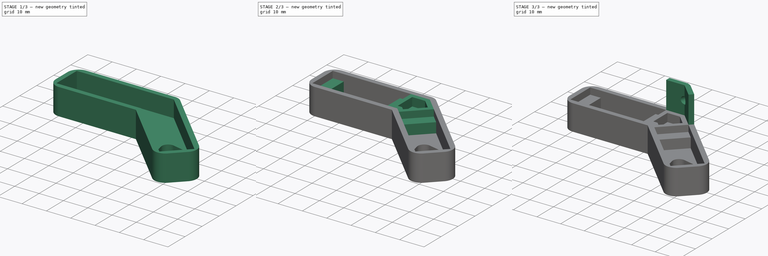
[diagram: build sequence overview — one tinted view per stage of 3, left to right]
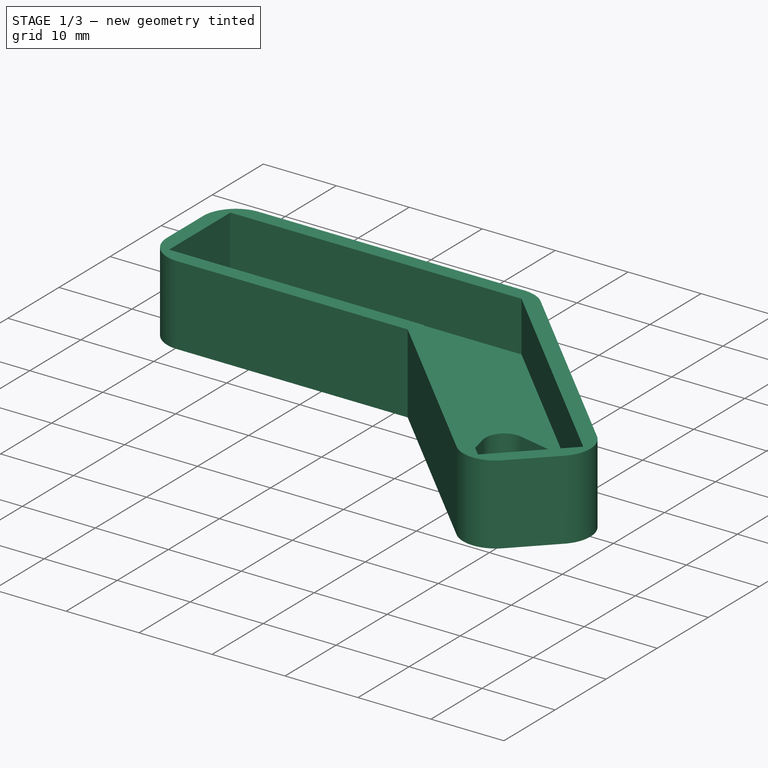
[diagram: stage 1 of 3 — iso view after this stage's code; geometry added in this stage tinted green]
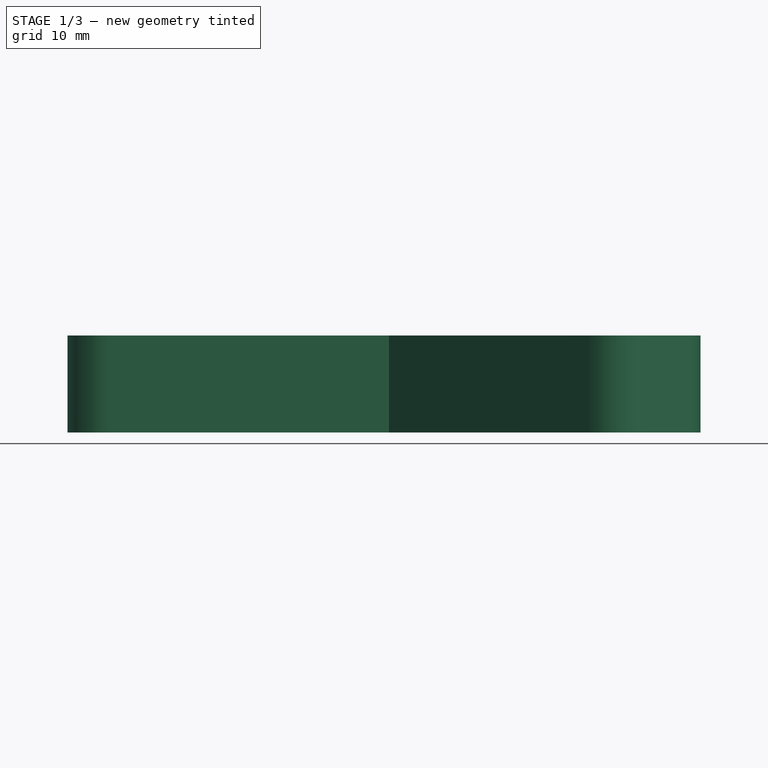
[diagram: stage 1 of 3 — front view after this stage's code; geometry added in this stage tinted green]
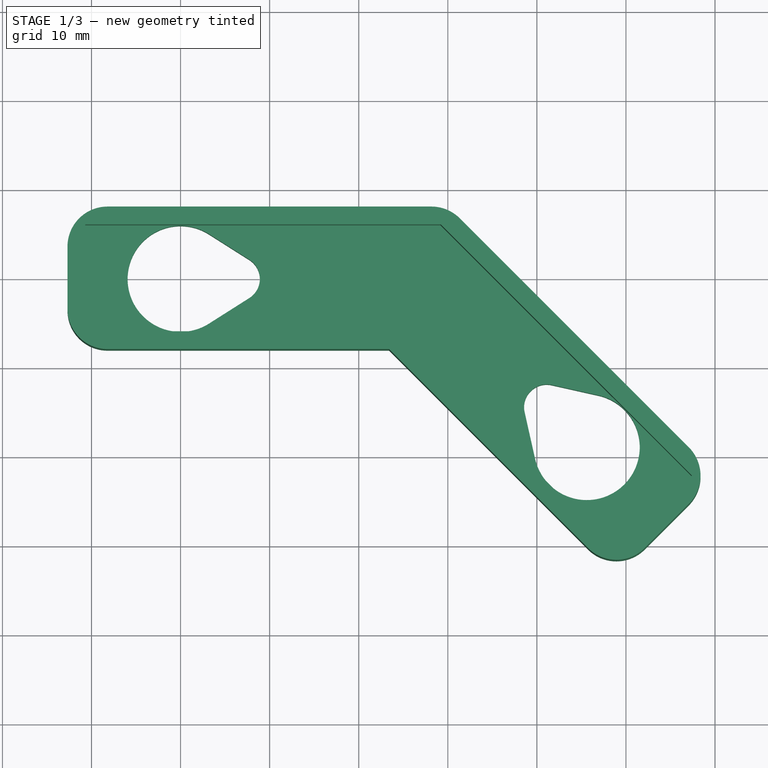
[diagram: stage 1 of 3 — top view after this stage's code; geometry added in this stage tinted green]
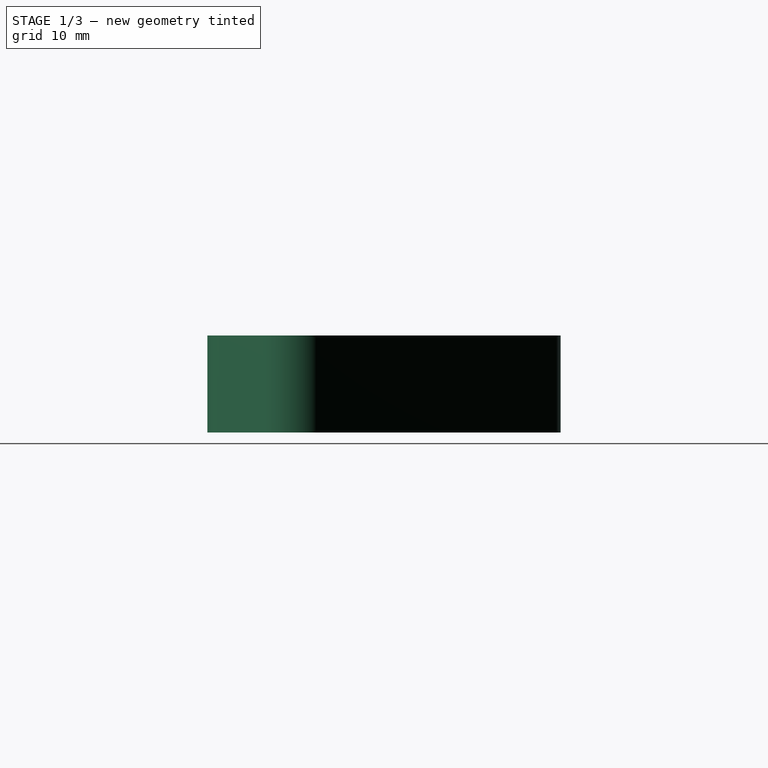
[diagram: stage 1 of 3 — right view after this stage's code; geometry added in this stage tinted green]
FCSTD DOCUMENT  (FreeCAD 0.19R)
Label: tibia_top
License: All rights reserved
LicenseURL: http://en.wikipedia.org/wiki/All_rights_reserved
objects: Sketcher::SketchObject×8, PartDesign::Pad×4, PartDesign::Pocket×3, PartDesign::Plane×1, PartDesign::Body×1
note: 24 computed .brp shape members not serialized (recipe doc carries the construction recipe); baked Part::Feature solids carry a one-line shape summary decoded from their .brp

FEATURE [Sketcher::SketchObject] Sketch
  MapMode = 5
  Support = -> [XY_Plane]
  sketch-geometry (46):
    g0: LineSegment [constr] StartX=-10.6 StartY=5.9 StartZ=0 EndX=21.3 EndY=5.9 EndZ=0
    g1: LineSegment [constr] StartX=21.3 StartY=5.9 StartZ=0 EndX=21.3 EndY=-5.9 EndZ=0
    g2: LineSegment [constr] StartX=21.3 StartY=-5.9 StartZ=0 EndX=-10.6 EndY=-5.9 EndZ=0
    g3: LineSegment [constr] StartX=-10.6 StartY=-5.9 StartZ=0 EndX=-10.6 EndY=5.9 EndZ=0
    g4: Circle [constr] CenterX=-8.3 CenterY=0 CenterZ=0 NormalX=0 NormalY=0 NormalZ=1 AngleXU=0 Radius=1
    g5: Circle [constr] CenterX=19 CenterY=0 CenterZ=0 NormalX=0 NormalY=0 NormalZ=1 AngleXU=0 Radius=1
    g6: LineSegment [constr] StartX=-8.3 StartY=0 StartZ=0 EndX=-10.6 EndY=0 EndZ=0
    g7: LineSegment [constr] StartX=19 StartY=0 StartZ=0 EndX=21.3 EndY=0 EndZ=0
    g8: LineSegment [constr] StartX=-5.9 StartY=5.9 StartZ=0 EndX=-5.9 EndY=-5.9 EndZ=0
    g9: ArcOfCircle [constr] CenterX=0 CenterY=0 CenterZ=0 NormalX=0 NormalY=0 NormalZ=1 AngleXU=0 Radius=5.9 StartAngle=0.437558 EndAngle=5.84563
    g10: ArcOfCircle [constr] CenterX=6.3 CenterY=0 CenterZ=0 NormalX=0 NormalY=0 NormalZ=1 AngleXU=0 Radius=2.5 StartAngle=4.71239 EndAngle=7.85398
    g11: LineSegment [constr] StartX=5.34416 StartY=2.5 StartZ=0 EndX=6.3 EndY=2.5 EndZ=0
    g12: LineSegment [constr] StartX=5.34416 StartY=-2.5 StartZ=0 EndX=6.3 EndY=-2.5 EndZ=0
    g13: LineSegment StartX=-12.7 StartY=3.5 StartZ=0 EndX=-12.7 EndY=-3.5 EndZ=0
    g14: LineSegment StartX=-8.2 StartY=-8 StartZ=0 EndX=23.4 EndY=-8 EndZ=0
    g15: LineSegment StartX=-8.2 StartY=8 StartZ=0 EndX=28.1635 EndY=8 EndZ=0
    g16: LineSegment StartX=23.4 StartY=-8 StartZ=0 EndX=45.7446 EndY=-30.3446 EndZ=0
    g17: LineSegment StartX=31.3454 StartY=6.68198 StartZ=0 EndX=57.0583 EndY=-19.0309 EndZ=0
    g18: LineSegment [constr] StartX=23.4 StartY=-8 StartZ=0 EndX=23.4 EndY=8 EndZ=0
    g19: LineSegment [constr] StartX=23.4 StartY=-8 StartZ=0 EndX=34.7137 EndY=3.31371 EndZ=0
    g20: LineSegment StartX=52.1085 StartY=-30.3446 StartZ=0 EndX=57.0583 EndY=-25.3948 EndZ=0
    g21: ArcOfCircle CenterX=-8.2 CenterY=3.5 CenterZ=0 NormalX=0 NormalY=0 NormalZ=1 AngleXU=0 Radius=4.5 StartAngle=1.5708 EndAngle=3.14159
    g22: ArcOfCircle CenterX=-8.2 CenterY=-3.5 CenterZ=0 NormalX=0 NormalY=0 NormalZ=1 AngleXU=0 Radius=4.5 StartAngle=3.14159 EndAngle=4.71239
    g23: ArcOfCircle CenterX=28.1635 CenterY=3.5 CenterZ=0 NormalX=0 NormalY=0 NormalZ=1 AngleXU=0 Radius=4.5 StartAngle=0.785398 EndAngle=1.5708
    g24: ArcOfCircle CenterX=48.9266 CenterY=-27.1626 CenterZ=0 NormalX=0 NormalY=0 NormalZ=1 AngleXU=0 Radius=4.5 StartAngle=3.92699 EndAngle=5.49779
    g25: ArcOfCircle CenterX=53.8763 CenterY=-22.2128 CenterZ=0 NormalX=0 NormalY=0 NormalZ=1 AngleXU=0 Radius=4.5 StartAngle=5.49779 EndAngle=7.06858
    g26: LineSegment [constr] StartX=-10.6 StartY=5.9 StartZ=0 EndX=-11.382 EndY=6.68198 EndZ=0
    g27: LineSegment [constr] StartX=-3.45211 StartY=-8 StartZ=0 EndX=-3.45211 EndY=-5.9 EndZ=0
    g28: LineSegment [constr] StartX=-3.60271 StartY=8 StartZ=0 EndX=-3.60271 EndY=5.9 EndZ=0
    g29: LineSegment [constr] StartX=21.3 StartY=-5.9 StartZ=0 EndX=23.4 EndY=-5.9 EndZ=0
    g30: LineSegment [constr] StartX=-10.6 StartY=-0.706956 StartZ=0 EndX=-12.7 EndY=-0.706956 EndZ=0
    g31: ArcOfCircle CenterX=0 CenterY=0 CenterZ=0 NormalX=0 NormalY=0 NormalZ=1 AngleXU=0 Radius=5.95 StartAngle=1.00578 EndAngle=5.27741
    g32: ArcOfCircle CenterX=6.35 CenterY=-9e-16 CenterZ=0 NormalX=0 NormalY=0 NormalZ=1 AngleXU=0 Radius=2.55 StartAngle=5.27741 EndAngle=7.28896
    g33: LineSegment StartX=3.18583 StartY=5.02524 StartZ=0 EndX=7.71535 EndY=2.15367 EndZ=0
    g34: LineSegment StartX=3.18583 StartY=-5.02524 StartZ=0 EndX=7.71535 EndY=-2.15367 EndZ=0
    g35: LineSegment [constr] StartX=26.3698 StartY=-8 StartZ=0 EndX=34.7137 EndY=0.34386 EndZ=0
    g36: LineSegment [constr] StartX=34.7137 StartY=0.34386 StartZ=0 EndX=57.2704 EndY=-22.2128 EndZ=0
    g37: LineSegment [constr] StartX=57.2704 StartY=-22.2128 StartZ=0 EndX=48.9266 EndY=-30.5567 EndZ=0
    g38: LineSegment [constr] StartX=48.9266 StartY=-30.5567 StartZ=0 EndX=26.3698 EndY=-8 EndZ=0
    g39: LineSegment [constr] StartX=38.0662 StartY=-22.6662 StartZ=0 EndX=39.5511 EndY=-21.1812 EndZ=0
    g40: LineSegment [constr] StartX=56.147 StartY=-26.3061 StartZ=0 EndX=54.6621 EndY=-24.8212 EndZ=0
    g41: ArcOfCircle CenterX=45.6032 CenterY=-18.8894 CenterZ=0 NormalX=0 NormalY=0 NormalZ=1 AngleXU=0 Radius=5.95 StartAngle=3.36197 EndAngle=7.6336
    g42: ArcOfCircle CenterX=41.113 CenterY=-14.3993 CenterZ=0 NormalX=0 NormalY=0 NormalZ=1 AngleXU=0 Radius=2.55 StartAngle=1.35042 EndAngle=3.36197
    g43: LineSegment StartX=38.6247 StartY=-14.9567 StartZ=0 EndX=39.7971 EndY=-20.1901 EndZ=0
    g44: LineSegment StartX=41.6705 StartY=-11.911 StartZ=0 EndX=46.9038 EndY=-13.0833 EndZ=0
    g45: LineSegment [constr] StartX=41.6705 StartY=-11.911 StartZ=0 EndX=38.6247 EndY=-14.9567 EndZ=0
  constraints (133):
    c: Coincident(g0,g1)
    c: Coincident(g1,g2)
    c: Coincident(g2,g3)
    c: Coincident(g3,g0)
    c: Horizontal(g0)
    c: Horizontal(g2)
    c: Vertical(g1)
    c: Vertical(g3)
    c: DistanceY(g1,g1) = 11.8
    c: DistanceX(g0,g0) = 31.9
    c: Equal(g4,g5)
    c: Radius(g4) = 1
    c: Horizontal(g4,g5)
    c: Distance(g4,g0) = 5.9
    c: Coincident(g6,g4)
    c: PointOnObject(g6,g3)
    c: Horizontal(g6)
    c: Coincident(g7,g5)
    c: PointOnObject(g7,g1)
    c: Horizontal(g7)
    c: Equal(g7,g6)
    c: DistanceX(g7,g7) = 2.3
    c: PointOnObject(g8,g0)
    c: PointOnObject(g8,g2)
    c: Vertical(g8)
    c: Distance(g8,g3) = 4.7
    c: Radius(g9) = 5.9
    c: Vertical(g9,g9)
    c: Horizontal(g9,g5)
    c: Angle(g10) = 3.14159
    c: Vertical(g10,g10)
    c: Horizontal(g10,g5)
    c: Horizontal(g9,g10)
    c: Distance(g10,g1) = 15
    c: Coincident(g11,g9)
    c: Coincident(g11,g10)
    c: Coincident(g12,g9)
    c: Coincident(g12,g10)
    c: Tangent(g9,g8)
    c: Radius(g10) = 2.5
    c: Coincident(g9,g-1)
    c: Vertical(g13)
    c: Horizontal(g14)
    c: Horizontal(g15)
    c: Coincident(g16,g14)
    c: Angle(g14,g16) = 2.35619
    c: Coincident(g18,g14)
    c: PointOnObject(g18,g15)
    c: Vertical(g18)
    c: Parallel(g17,g16)
    c: Coincident(g19,g14)
    c: PointOnObject(g19,g17)
    c: Perpendicular(g16,g19)
    c: Equal(g19,g18)
    c: Perpendicular(g20,g16)
    c: Equal(g14,g16)
    c: Tangent(g13,g21) = -1.5708
    c: Tangent(g15,g21) = 1.5708
    c: Tangent(g13,g22) = -1.5708
    c: Tangent(g14,g22) = -1.5708
    c: Tangent(g15,g23) = 1.5708
    c: Tangent(g17,g23) = 1.5708
    c: Tangent(g16,g24) = -1.5708
    c: Tangent(g20,g24) = -1.5708
    c: Tangent(g17,g25) = 1.5708
    c: Tangent(g20,g25) = -1.5708
    c: Equal(g22,g21)
    c: Equal(g21,g24)
    c: Equal(g24,g25)
    c: Radius(g25) = 4.5
    c: Equal(g23,g25)
    c: Coincident(g26,g0)
    c: PointOnObject(g26,g21)
    c: Angle(g0,g26) = 2.35619
    c: PointOnObject(g27,g14)
    c: PointOnObject(g27,g2)
    c: Vertical(g27)
    c: PointOnObject(g28,g15)
    c: Vertical(g28)
    c: Coincident(g29,g1)
    c: PointOnObject(g29,g18)
    c: Horizontal(g29)
    c: PointOnObject(g30,g3)
    c: PointOnObject(g30,g13)
    c: Horizontal(g30)
    c: Equal(g27,g30)
    c: Equal(g30,g28)
    c: Equal(g28,g29)
    c: PointOnObject(g28,g0)
    c: DistanceY(g28,g28) = 2.1
    c: Tangent(g31,g33) = 1.5708
    c: Tangent(g31,g34) = -1.5708
    c: Tangent(g34,g32) = -1.5708
    c: Tangent(g32,g33) = 1.5708
    c: Vertical(g31,g31)
    c: Coincident(g31,g-1)
    c: Radius(g31) = 5.95
    c: Radius(g32) = 2.55
    c: Distance(g10,g32) = 0.05
    c: Coincident(g35,g36)
    c: Coincident(g36,g37)
    c: Coincident(g37,g38)
    c: Coincident(g38,g35)
    c: Parallel(g38,g16)
    c: Parallel(g16,g36)
    c: Parallel(g35,g37)
    c: Parallel(g37,g20)
    c: Equal(g36,g0)
    c: Equal(g35,g3)
    c: PointOnObject(g39,g38)
    c: PointOnObject(g39,g16)
    c: PointOnObject(g40,g37)
    c: PointOnObject(g40,g20)
    c: Parallel(g39,g20)
    c: Parallel(g40,g17)
    c: Equal(g39,g40)
    c: Equal(g40,g27)
    c: Coincident(g42,g43)
    c: Coincident(g42,g44)
    c: Coincident(g41,g44)
    c: Coincident(g41,g43)
    c: Tangent(g43,g42)
    c: Tangent(g44,g42)
    c: Tangent(g43,g41)
    c: Equal(g41,g31)
    c: Equal(g42,g32)
    c: Equal(g43,g34)
    c: Equal(g44,g33)
    c: Distance(g41,g37) = 10.6
    c: Coincident(g45,g42)
    c: Coincident(g45,g42)
    c: Parallel(g45,g20)
    c: Distance(g41,g16) = 8
FEATURE [PartDesign::Pad] Pad
  Length = 10.9
  Length2 = 100
  Profile = -> Sketch
  Type = 0
FEATURE [Sketcher::SketchObject] Sketch001
  ExternalGeometry = -> [Pad]
  MapMode = 5
  Placement = pos=(0,0,10.9) rot=(0,0,1;0rad)
  Support = -> [Pad]
  sketch-geometry (10):
    g0: LineSegment StartX=-10.7 StartY=6 StartZ=0 EndX=29.199 EndY=6 EndZ=0
    g1: LineSegment StartX=29.199 StartY=6 StartZ=0 EndX=57.4118 EndY=-22.2128 EndZ=0
    g2: LineSegment StartX=57.4118 StartY=-22.2128 StartZ=0 EndX=48.9266 EndY=-30.6981 EndZ=0
    g3: LineSegment StartX=48.9266 StartY=-30.6981 StartZ=0 EndX=24.2284 EndY=-6 EndZ=0
    g4: LineSegment StartX=24.2284 StartY=-6 StartZ=0 EndX=-10.7 EndY=-6 EndZ=0
    g5: LineSegment StartX=-10.7 StartY=-6 StartZ=0 EndX=-10.7 EndY=6 EndZ=0
    g6: LineSegment [constr] StartX=6.2279 StartY=-8 StartZ=0 EndX=6.2279 EndY=-6 EndZ=0
    g7: LineSegment [constr] StartX=5.73363 StartY=8 StartZ=0 EndX=5.73363 EndY=6 EndZ=0
    g8: LineSegment [constr] StartX=-12.7 StartY=0.688525 StartZ=0 EndX=-10.7 EndY=0.688525 EndZ=0
    g9: LineSegment [constr] StartX=55.0164 StartY=-27.4368 StartZ=0 EndX=53.6021 EndY=-26.0225 EndZ=0
  constraints (30):
    c: Horizontal(g0)
    c: Coincident(g0,g1)
    c: Coincident(g1,g2)
    c: Coincident(g2,g3)
    c: Coincident(g3,g4)
    c: Horizontal(g4)
    c: Coincident(g4,g5)
    c: Coincident(g5,g0)
    c: Vertical(g5)
    c: Parallel(g2,g-7)
    c: Parallel(g-6,g3)
    c: Parallel(g3,g1)
    c: Vertical(g6)
    c: Vertical(g7)
    c: Horizontal(g8)
    c: Parallel(g9,g-6)
    c: PointOnObject(g8,g5)
    c: PointOnObject(g8,g-3)
    c: PointOnObject(g7,g0)
    c: PointOnObject(g7,g-4)
    c: PointOnObject(g6,g4)
    c: PointOnObject(g6,g-5)
    c: PointOnObject(g9,g2)
    c: PointOnObject(g9,g-7)
    c: Equal(g9,g7)
    c: Equal(g7,g6)
    c: Equal(g6,g8)
    c: DistanceY(g6,g6) = 2
    c: Equal(g4,g3)
    c: Equal(g2,g5)
FEATURE [PartDesign::Pocket] Pocket
  BaseFeature = -> Pad
  Length = 6.9
  Length2 = 100
  Profile = -> Sketch001
  Type = 0
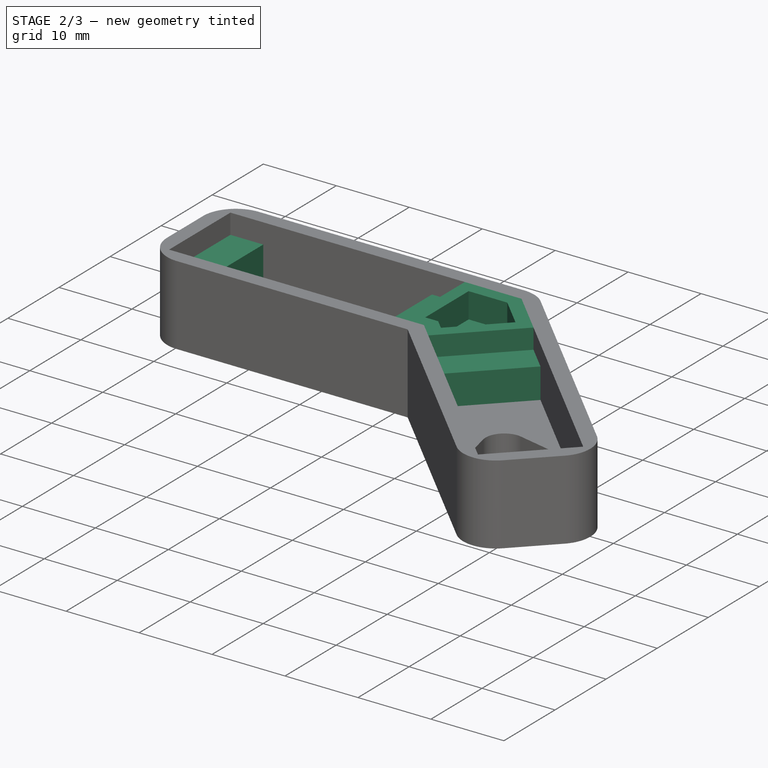
[diagram: stage 2 of 3 — iso view after this stage's code; geometry added in this stage tinted green]
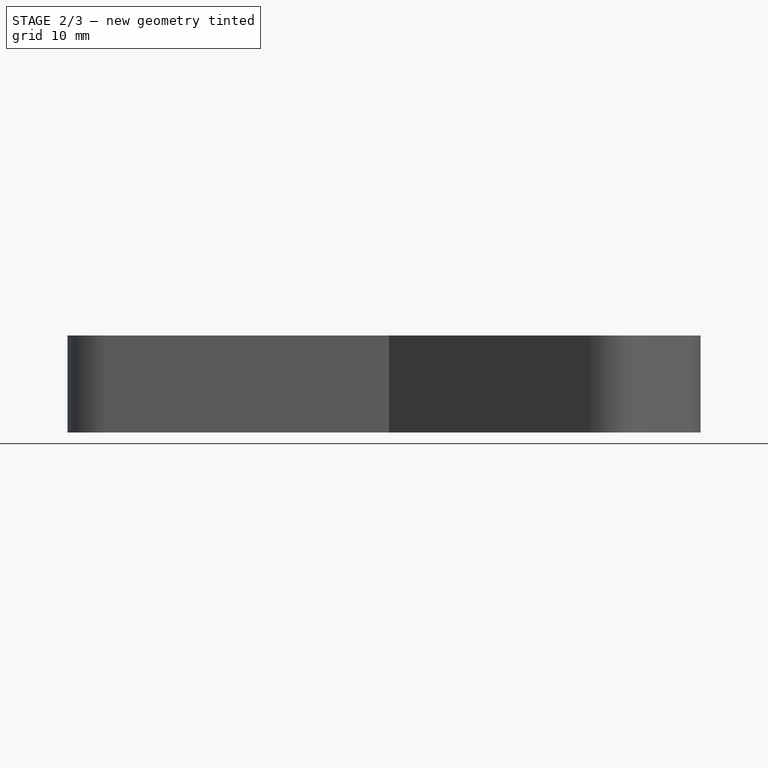
[diagram: stage 2 of 3 — front view after this stage's code; geometry added in this stage tinted green]
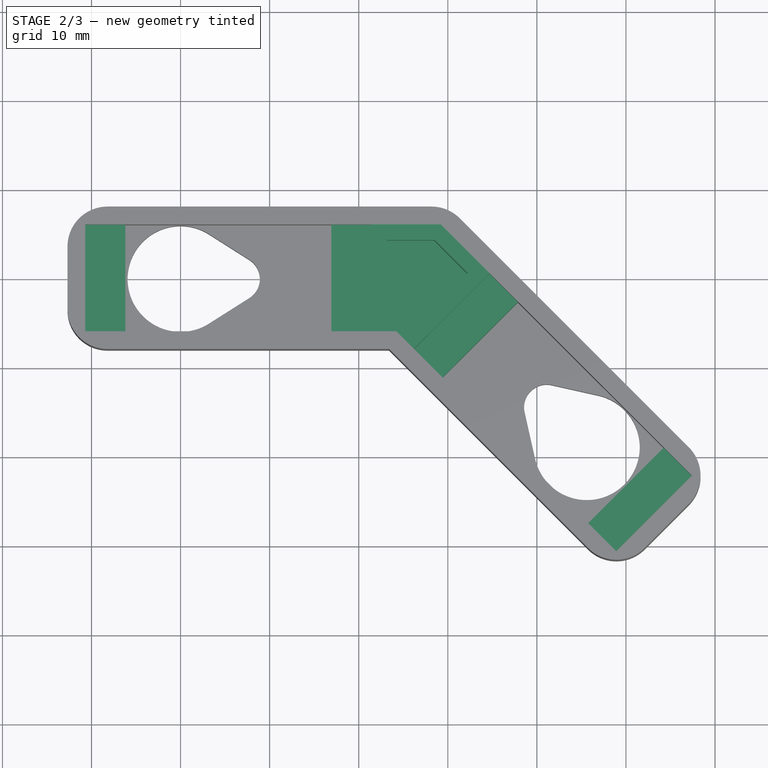
[diagram: stage 2 of 3 — top view after this stage's code; geometry added in this stage tinted green]
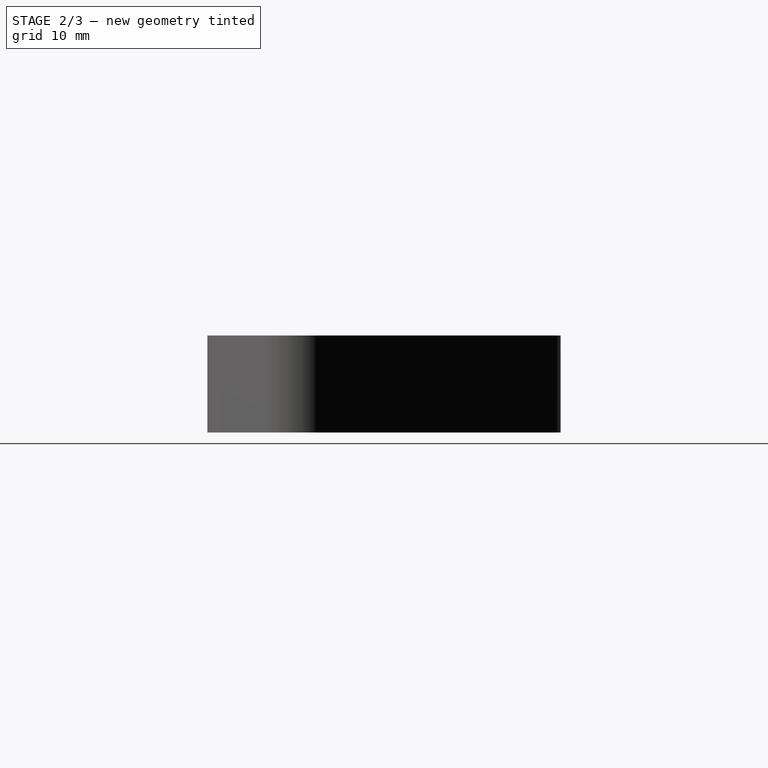
[diagram: stage 2 of 3 — right view after this stage's code; geometry added in this stage tinted green]
FEATURE [Sketcher::SketchObject] Sketch002
  ExternalGeometry = -> [Pocket]
  MapMode = 5
  Placement = pos=(0,0,4) rot=(0,0,1;0rad)
  Support = -> [Pocket]
  sketch-geometry (6):
    g0: LineSegment StartX=21.4284 StartY=6 StartZ=0 EndX=29.199 EndY=6 EndZ=0
    g1: LineSegment StartX=29.199 StartY=6 StartZ=0 EndX=34.6936 EndY=0.505382 EndZ=0
    g2: LineSegment StartX=21.4284 StartY=6 StartZ=0 EndX=21.4284 EndY=-6 EndZ=0
    g3: LineSegment StartX=21.4284 StartY=-6 StartZ=0 EndX=24.2284 EndY=-6 EndZ=0
    g4: LineSegment StartX=24.2284 StartY=-6 StartZ=0 EndX=26.2083 EndY=-7.9799 EndZ=0
    g5: LineSegment StartX=26.2083 StartY=-7.9799 StartZ=0 EndX=34.6936 EndY=0.505382 EndZ=0
  constraints (16):
    c: Coincident(g0,g1)
    c: Coincident(g0,g-6)
    c: PointOnObject(g0,g-6)
    c: PointOnObject(g1,g-5)
    c: Coincident(g2,g3)
    c: Coincident(g3,g4)
    c: Coincident(g4,g5)
    c: Vertical(g2)
    c: Parallel(g-4,g4)
    c: Perpendicular(g5,g4)
    c: Equal(g3,g4)
    c: Coincident(g2,g0)
    c: Coincident(g5,g1)
    c: Coincident(g3,g-4)
    c: Horizontal(g3)
    c: DistanceX(g3,g3) = 2.8
FEATURE [PartDesign::Pad] Pad001
  BaseFeature = -> Pocket
  Length = 6.9
  Length2 = 100
  Profile = -> Sketch002
  Type = 0
FEATURE [Sketcher::SketchObject] Sketch003
  ExternalGeometry = -> [Pad001]
  MapMode = 5
  Placement = pos=(0,0,4) rot=(0,0,1;0rad)
  Support = -> [Pad001]
  sketch-geometry (16):
    g0: LineSegment StartX=16.9284 StartY=6 StartZ=0 EndX=21.4284 EndY=6 EndZ=0
    g1: LineSegment StartX=21.4284 StartY=6 StartZ=0 EndX=21.4284 EndY=-6 EndZ=0
    g2: LineSegment StartX=21.4284 StartY=-6 StartZ=0 EndX=16.9284 EndY=-6 EndZ=0
    g3: LineSegment StartX=16.9284 StartY=-6 StartZ=0 EndX=16.9284 EndY=6 EndZ=0
    g4: LineSegment StartX=26.2083 StartY=-7.9799 StartZ=0 EndX=34.6936 EndY=0.505382 EndZ=0
    g5: LineSegment StartX=34.6936 StartY=0.505382 StartZ=0 EndX=37.8756 EndY=-2.6766 EndZ=0
    g6: LineSegment StartX=37.8756 StartY=-2.6766 StartZ=0 EndX=29.3903 EndY=-11.1619 EndZ=0
    g7: LineSegment StartX=29.3903 StartY=-11.1619 StartZ=0 EndX=26.2083 EndY=-7.9799 EndZ=0
    g8: LineSegment StartX=-10.7 StartY=6 StartZ=0 EndX=-6.2 EndY=6 EndZ=0
    g9: LineSegment StartX=-6.2 StartY=6 StartZ=0 EndX=-6.2 EndY=-6 EndZ=0
    g10: LineSegment StartX=-6.2 StartY=-6 StartZ=0 EndX=-10.7 EndY=-6 EndZ=0
    g11: LineSegment StartX=-10.7 StartY=-6 StartZ=0 EndX=-10.7 EndY=6 EndZ=0
    g12: LineSegment StartX=54.2299 StartY=-19.0309 StartZ=0 EndX=57.4118 EndY=-22.2128 EndZ=0
    g13: LineSegment StartX=57.4118 StartY=-22.2128 StartZ=0 EndX=48.9266 EndY=-30.6981 EndZ=0
    g14: LineSegment StartX=48.9266 StartY=-30.6981 StartZ=0 EndX=45.7446 EndY=-27.5161 EndZ=0
    g15: LineSegment StartX=45.7446 StartY=-27.5161 StartZ=0 EndX=54.2299 EndY=-19.0309 EndZ=0
  constraints (40):
    c: Coincident(g0,g1)
    c: Coincident(g1,g2)
    c: Coincident(g2,g3)
    c: Coincident(g3,g0)
    c: Horizontal(g0)
    c: Horizontal(g2)
    c: Vertical(g3)
    c: Coincident(g4,g5)
    c: Coincident(g5,g6)
    c: Coincident(g6,g7)
    c: Coincident(g7,g4)
    c: Parallel(g4,g6)
    c: Parallel(g5,g-6)
    c: Parallel(g-6,g7)
    c: Coincident(g4,g-6)
    c: Coincident(g-5,g4)
    c: Coincident(g0,g-4)
    c: Coincident(g1,g-4)
    c: Equal(g5,g0)
    c: DistanceX(g0,g0) = 4.5
    c: Coincident(g8,g9)
    c: Coincident(g9,g10)
    c: Coincident(g10,g11)
    c: Coincident(g11,g8)
    c: Horizontal(g8)
    c: Horizontal(g10)
    c: Vertical(g9)
    c: Coincident(g12,g13)
    c: Coincident(g13,g14)
    c: Coincident(g14,g15)
    c: Coincident(g15,g12)
    c: Parallel(g12,g14)
    c: Parallel(g14,g-8)
    c: Equal(g14,g12)
    c: Equal(g12,g7)
    c: Equal(g7,g10)
    c: Coincident(g13,g-8)
    c: Coincident(g12,g-6)
    c: Coincident(g8,g-3)
    c: Coincident(g10,g-7)
FEATURE [PartDesign::Pad] Pad002
  BaseFeature = -> Pad001
  Length = 4.15
  Length2 = 100
  Profile = -> Sketch003
  Type = 0
FEATURE [Sketcher::SketchObject] Sketch004
  ExternalGeometry = -> [Pad002]
  MapMode = 5
  Placement = pos=(0,0,10.9) rot=(0,0,1;0rad)
  Support = -> [Pad002]
  sketch-geometry (10):
    g0: LineSegment [constr] StartX=24.2284 StartY=-6 StartZ=0 EndX=29.199 EndY=6 EndZ=0
    g1: LineSegment StartX=23.1784 StartY=-4.25 StartZ=0 EndX=24.9533 EndY=-4.25 EndZ=0
    g2: LineSegment StartX=24.9533 StartY=-4.25 StartZ=0 EndX=26.2083 EndY=-5.50503 EndZ=0
    g3: LineSegment StartX=26.2083 StartY=-5.50503 StartZ=0 EndX=32.2187 EndY=0.505382 EndZ=0
    g4: LineSegment StartX=32.2187 StartY=0.505382 StartZ=0 EndX=28.4741 EndY=4.25 EndZ=0
    g5: LineSegment StartX=28.4741 StartY=4.25 StartZ=0 EndX=23.1784 EndY=4.25 EndZ=0
    g6: LineSegment StartX=23.1784 StartY=4.25 StartZ=0 EndX=23.1784 EndY=-4.25 EndZ=0
    g7: LineSegment [constr] StartX=23.1784 StartY=4.25 StartZ=0 EndX=23.1784 EndY=6 EndZ=0
    g8: LineSegment [constr] StartX=23.1784 StartY=4.25 StartZ=0 EndX=21.4284 EndY=4.25 EndZ=0
    g9: LineSegment [constr] StartX=23.1784 StartY=-4.25 StartZ=0 EndX=23.1784 EndY=-6 EndZ=0
  constraints (29):
    c: Coincident(g0,g-4)
    c: Coincident(g0,g-3)
    c: PointOnObject(g1,g0)
    c: Coincident(g1,g2)
    c: Coincident(g2,g3)
    c: Coincident(g3,g4)
    c: PointOnObject(g4,g0)
    c: Coincident(g4,g5)
    c: Horizontal(g5)
    c: Coincident(g5,g6)
    c: Coincident(g6,g1)
    c: Vertical(g6)
    c: Horizontal(g1)
    c: Parallel(g-6,g2)
    c: Parallel(g2,g4)
    c: Equal(g4,g5)
    c: Equal(g1,g2)
    c: Coincident(g7,g5)
    c: PointOnObject(g7,g-7)
    c: Vertical(g7)
    c: Coincident(g8,g5)
    c: PointOnObject(g8,g-5)
    c: Horizontal(g8)
    c: Coincident(g9,g1)
    c: PointOnObject(g9,g-4)
    c: Vertical(g9)
    c: Equal(g9,g8)
    c: Equal(g8,g7)
    c: Distance(g9) = 1.75
FEATURE [PartDesign::Pocket] Pocket001
  BaseFeature = -> Pad002
  Length = 3.5
  Length2 = 100
  Profile = -> Sketch004
  Type = 0
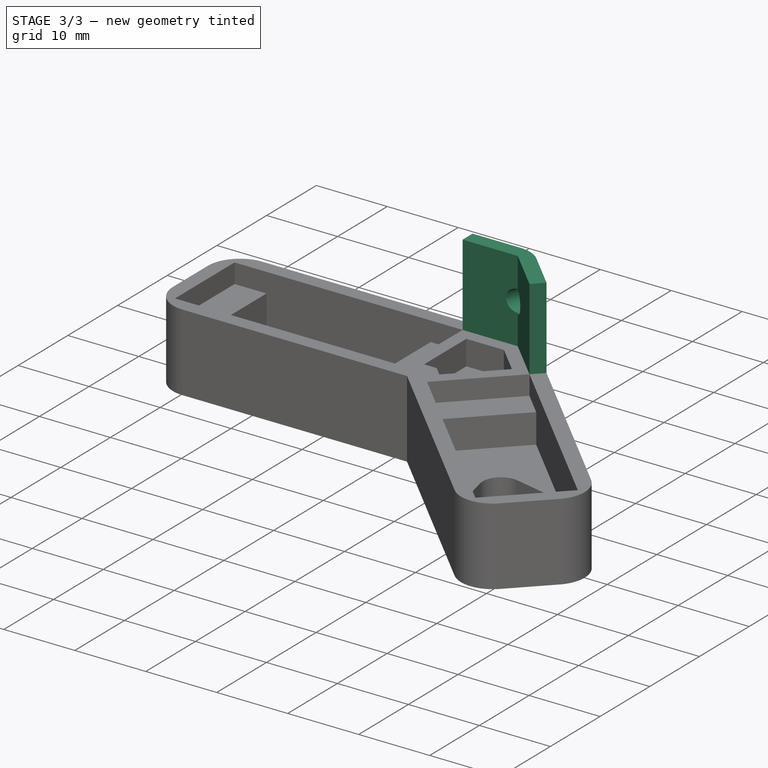
[diagram: stage 3 of 3 — iso view after this stage's code; geometry added in this stage tinted green]
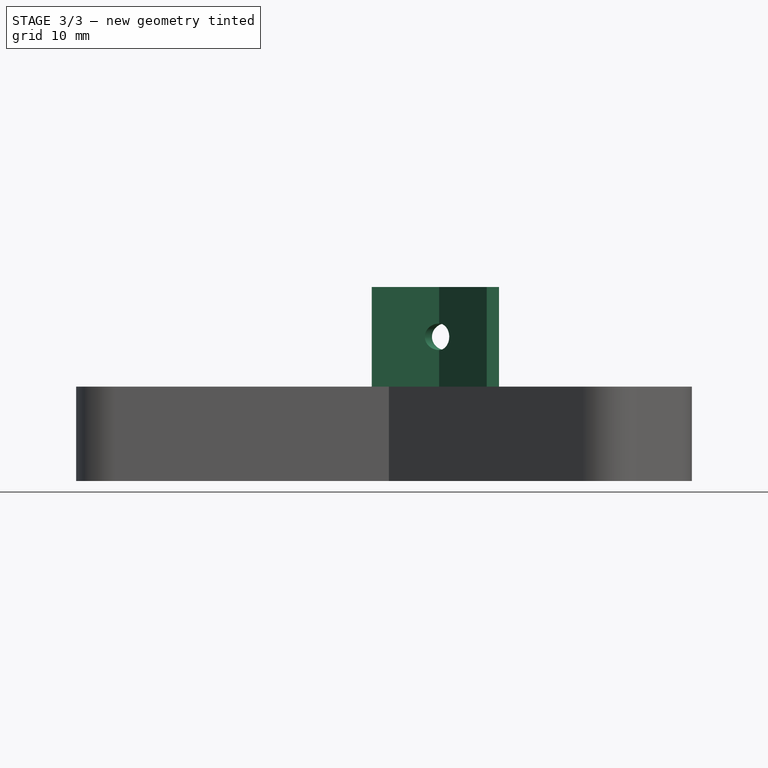
[diagram: stage 3 of 3 — front view after this stage's code; geometry added in this stage tinted green]
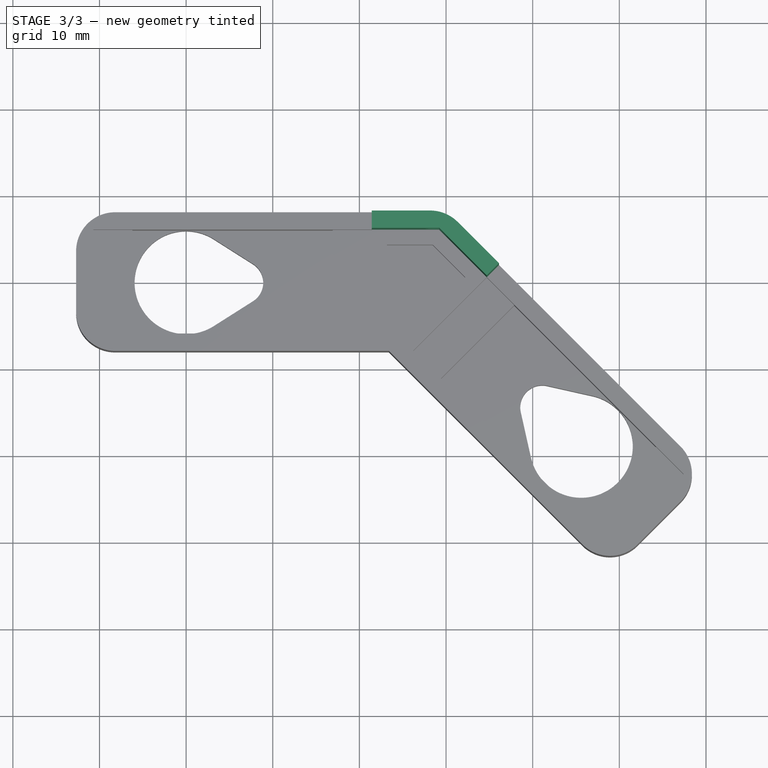
[diagram: stage 3 of 3 — top view after this stage's code; geometry added in this stage tinted green]
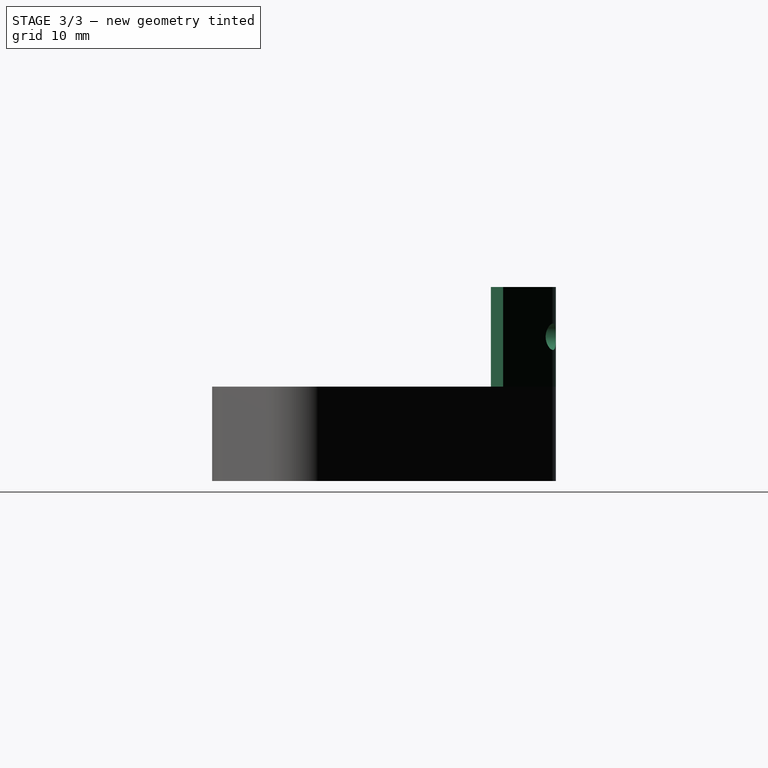
[diagram: stage 3 of 3 — right view after this stage's code; geometry added in this stage tinted green]
FEATURE [Sketcher::SketchObject] Sketch005
  ExternalGeometry = -> [Pocket001]
  MapMode = 5
  Placement = pos=(0,0,10.9) rot=(0,0,1;0rad)
  Support = -> [Pocket001]
  sketch-geometry (7):
    g0: LineSegment StartX=21.4284 StartY=6 StartZ=0 EndX=29.199 EndY=6 EndZ=0
    g1: LineSegment StartX=34.6936 StartY=0.505382 StartZ=0 EndX=29.199 EndY=6 EndZ=0
    g2: LineSegment StartX=21.4284 StartY=6 StartZ=0 EndX=21.4284 EndY=8 EndZ=0
    g3: LineSegment StartX=34.6936 StartY=0.505382 StartZ=0 EndX=36.1078 EndY=1.9196 EndZ=0
    g4: LineSegment StartX=36.1078 StartY=1.9196 StartZ=0 EndX=31.3454 EndY=6.68198 EndZ=0
    g5: LineSegment StartX=28.1635 StartY=8 StartZ=0 EndX=21.4284 EndY=8 EndZ=0
    g6: ArcOfCircle CenterX=28.1635 CenterY=3.5 CenterZ=0 NormalX=0 NormalY=0 NormalZ=1 AngleXU=0 Radius=4.5 StartAngle=0.785398 EndAngle=1.5708
  constraints (15):
    c: Coincident(g0,g-3)
    c: Coincident(g0,g-6)
    c: Coincident(g1,g0)
    c: Coincident(g2,g0)
    c: PointOnObject(g2,g-4)
    c: Vertical(g2)
    c: Coincident(g3,g1)
    c: Coincident(g4,g3)
    c: Coincident(g5,g2)
    c: Perpendicular(g-5,g3)
    c: Tangent(g4,g6) = -1.5708
    c: Tangent(g5,g6) = -1.5708
    c: Coincident(g5,g-4)
    c: Coincident(g4,g-5)
    c: Coincident(g1,g-6)
FEATURE [PartDesign::Pad] Pad003
  BaseFeature = -> Pocket001
  Length = 11.5
  Length2 = 100
  Profile = -> Sketch005
  Type = 0
FEATURE [PartDesign::Plane] DatumPlane
  AttachmentOffset = pos=(0,0,13) rot=(0,1,0;2.74889rad)
  Length = 112.725
  MapMode = 5
  Placement = pos=(0,21,-2.9e-15) rot=(-0.962637,0.19148,0.19148;4.67432rad)
  ResizeMode = 0
  Support = -> [Pad003]
  Width = 64.0482
FEATURE [Sketcher::SketchObject] Sketch006
  ExternalGeometry = -> [Pad003]
  MapMode = 5
  Placement = pos=(3.6e-15,21,-2.9e-15) rot=(0.962637,-0.19148,-0.19148;1.60887rad)
  Support = -> [DatumPlane]
  sketch-geometry (3):
    g0: LineSegment [constr] StartX=32.7166 StartY=22.4 StartZ=0 EndX=32.7166 EndY=16.65 EndZ=0
    g1: LineSegment [constr] StartX=32.7166 StartY=16.65 StartZ=0 EndX=32.7166 EndY=10.9 EndZ=0
    g2: Circle CenterX=32.7166 CenterY=16.65 CenterZ=0 NormalX=0 NormalY=0 NormalZ=1 AngleXU=0 Radius=1.525
  constraints (7):
    c: Coincident(g0,g1)
    c: Equal(g1,g0)
    c: Coincident(g0,g2)
    c: Radius(g2) = 1.525
    c: Coincident(g0,g-3)
    c: Coincident(g1,g-4)
    c: Vertical(g1)
FEATURE [PartDesign::Pocket] Pocket002
  BaseFeature = -> Pad003
  Length = 5
  Length2 = 100
  Profile = -> Sketch006
  Reversed = true
  Type = 1
FEATURE [Sketcher::SketchObject] Sketch007
  ExternalGeometry = -> [Pocket002]
  MapMode = 5
  Placement = pos=(0,0,0) rot=(1,0,0;3.14159rad)
  Support = -> [Pocket002]
  sketch-geometry (1):
    g0: LineSegment [constr] StartX=0 StartY=0 StartZ=0 EndX=-12.7 EndY=0 EndZ=0
  constraints (3):
    c: Coincident(g0,g-1)
    c: PointOnObject(g0,g-4)
    c: Horizontal(g0)
FEATURE [PartDesign::Body] Body  label="tibia_top"
  Group = -> [Sketch,Pad,Sketch001,Pocket,Sketch002,Pad001,Sketch003,Pad002,Sketch004,Pocket001,Sketch005,Pad003,DatumPlane,Sketch006,Pocket002,Sketch007]
  Origin = -> Origin
  Tip = -> Pocket002
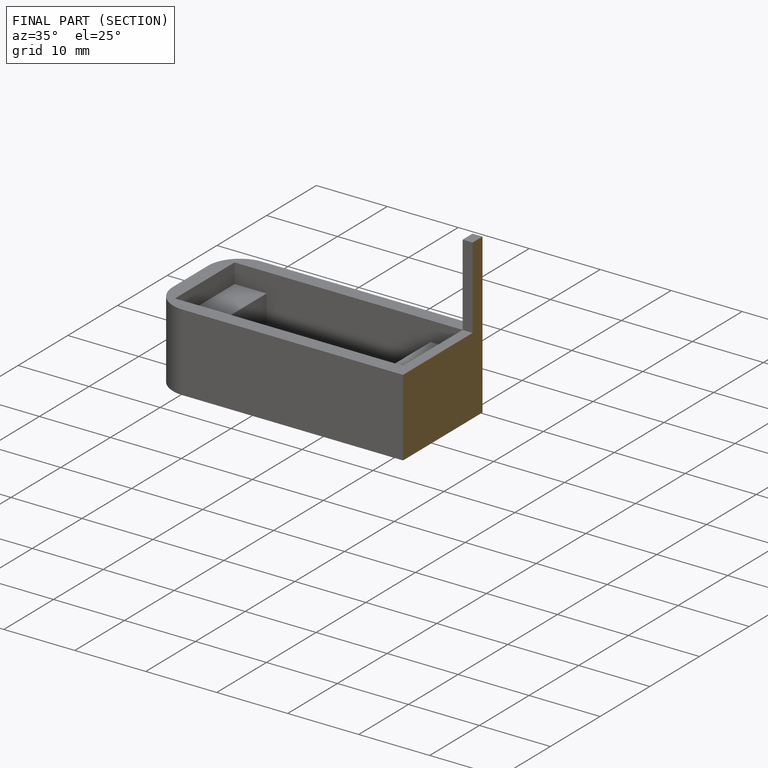
[diagram: finished part — half-section view (interior)]
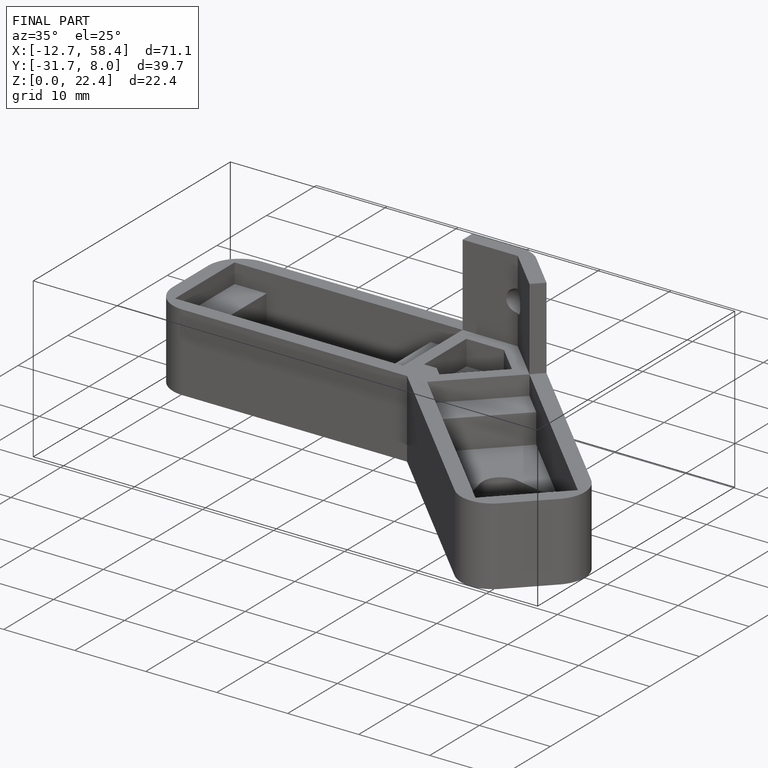
[diagram: finished part — iso view with bounding-box wireframe]
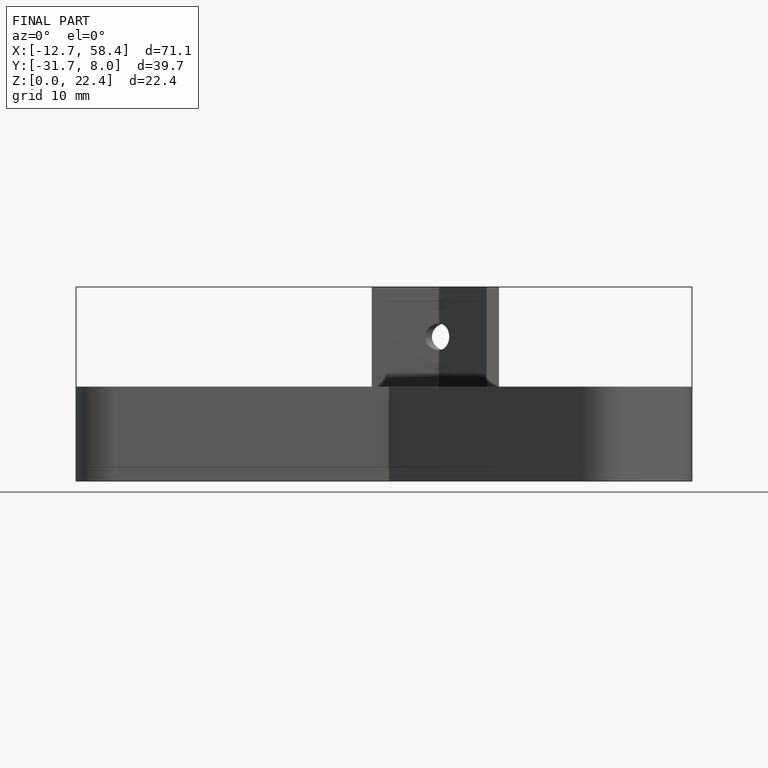
[diagram: finished part — front view with bounding-box wireframe]
